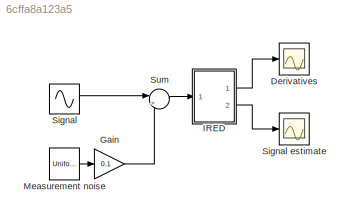
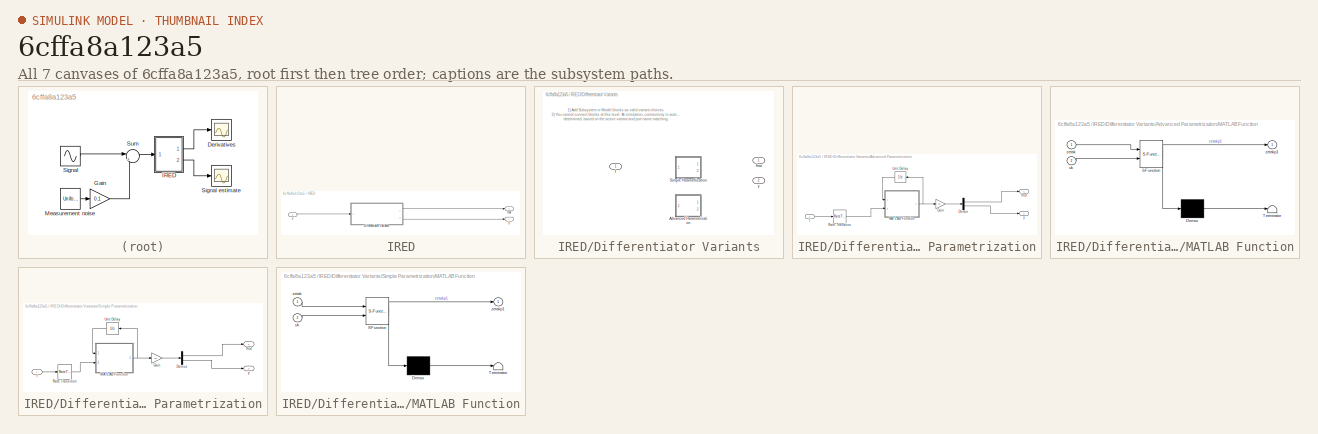
[diagram: thumbnail index - all 7 canvases of the model, root first then tree order]
MODEL slx_6cffa8a123a5
KIND model
CONFIG AbsTol = auto
CONFIG EnableMultiTasking = off
CONFIG FixedStep = auto
CONFIG MaxStep = auto
CONFIG MinStep = auto
CONFIG RelTol = 1e-3
CONFIG SampleTimeConstraint = Unconstrained
CONFIG Solver = VariableStepAuto
CONFIG SolverName = VariableStepAuto
CONFIG StartTime = 0.0
CONFIG StopTime = 30
BLOCK [Scope] Derivatives
  Floating = off
  NumInputPorts = 1
  Ports = [1]
  ScopeSpecificationString = Simulink.scopes.TimeScopeBlockCfg('CurrentConfiguration', extmgr.ConfigurationSet(extmgr.Configuration('Core','General UI',true),extmgr.Configuration('Core','Source UI',true),extmgr.Configuration('Sources','WiredSimulink',true,'DataLoggingVariableName','ScopeData1'),extmgr.Configuration('Visuals','Time Domain',true,'SerializedDisplays',{struct('MinYLimReal','-5.01685','MaxYLimReal','5.15298','YLab...<+1440ch>
BLOCK [Gain] Gain
  Gain = 0.1
  OutDataTypeStr = Inherit: Inherit via internal rule
  ParamDataTypeStr = Inherit: Inherit via internal rule
  SaturateOnIntegerOverflow = off
BLOCK [SubSystem] IRED
  InitFcn = if str2double(get_param(gcb,'T')) == 0 || str2double(get_param(gcb,'L')) == 0\n     \n    error('L and T must be positive');\n     \nend
  Ports = [1, 2]
  RequestExecContextInheritance = off
BLOCK [SubSystem] IRED/Differentiator Variants
  LabelModeActiveChoice = Simple
  Ports = [1, 2]
  RequestExecContextInheritance = off
  Variant = on
  VariantControlMode = Label
BLOCK [SubSystem] IRED/Differentiator Variants/Advanced Parametrization
  Ports = [1, 2]
  RequestExecContextInheritance = off
  VariantControl = Advanced
BLOCK [Demux] IRED/Differentiator Variants/Advanced Parametrization/Demux
  DisplayOption = bar
  Outputs = [1, n-1]
  Ports = [1, 2]
BLOCK [Gain] IRED/Differentiator Variants/Advanced Parametrization/Gain
  Gain = TC
  Multiplication = Matrix(K*u)
  OutDataTypeStr = Inherit: Inherit via internal rule
  ParamDataTypeStr = Inherit: Inherit via internal rule
  SaturateOnIntegerOverflow = off
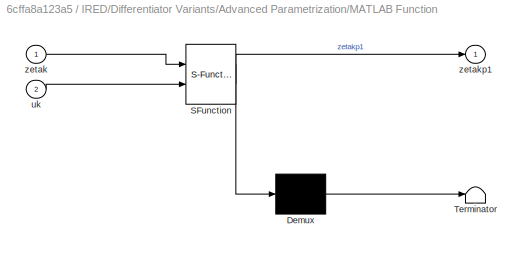
BLOCK [SubSystem] IRED/Differentiator Variants/Advanced Parametrization/MATLAB Function
  ErrorFcn = Stateflow.Translate.translate
  PermitHierarchicalResolution = ExplicitOnly
  Ports = [2, 1]
  RequestExecContextInheritance = off
  SFBlockType = MATLAB Function
  TreatAsAtomicUnit = on
BLOCK [Demux] IRED/Differentiator Variants/Advanced Parametrization/MATLAB Function/ Demux 
  Outputs = 1
  Ports = [1, 1]
BLOCK [S-Function] IRED/Differentiator Variants/Advanced Parametrization/MATLAB Function/ SFunction 
  EnableBusSupport = on
  FunctionName = sf_sfun
  Parameters = L,R,Tn,lambdai,n
  PortCounts = [2 2]
  Ports = [2, 2]
  SFcnIsStateOwnerBlock = off
  SFunctionDeploymentMode = off
  Tag = Stateflow S-Function 1
BLOCK [Terminator] IRED/Differentiator Variants/Advanced Parametrization/MATLAB Function/ Terminator 
BLOCK [Inport] IRED/Differentiator Variants/Advanced Parametrization/MATLAB Function/uk
  IconDisplay = Port number
  Port = 2
BLOCK [Inport] IRED/Differentiator Variants/Advanced Parametrization/MATLAB Function/zetak
  IconDisplay = Port number
BLOCK [Outport] IRED/Differentiator Variants/Advanced Parametrization/MATLAB Function/zetakp1
  IconDisplay = Port number
BLOCK [RateTransition] IRED/Differentiator Variants/Advanced Parametrization/Rate Transition
  OutPortSampleTime = T
BLOCK [UnitDelay] IRED/Differentiator Variants/Advanced Parametrization/Unit Delay
  HasFrameUpgradeWarning = on
  InitialCondition = zeros(n,1)
  SampleTime = -1
BLOCK [Inport] IRED/Differentiator Variants/Advanced Parametrization/f
  IconDisplay = Port number
BLOCK [Outport] IRED/Differentiator Variants/Advanced Parametrization/fhat
  IconDisplay = Port number
BLOCK [Outport] IRED/Differentiator Variants/Advanced Parametrization/y
  IconDisplay = Port number
  Port = 2
BLOCK [SubSystem] IRED/Differentiator Variants/Simple Parametrization
  Ports = [1, 2]
  RequestExecContextInheritance = off
  VariantControl = Simple
BLOCK [Demux] IRED/Differentiator Variants/Simple Parametrization/Demux
  DisplayOption = bar
  Outputs = [1, n-q-1]
  Ports = [1, 2]
BLOCK [Gain] IRED/Differentiator Variants/Simple Parametrization/Gain
  Gain = TC
  Multiplication = Matrix(K*u)
  OutDataTypeStr = Inherit: Inherit via internal rule
  ParamDataTypeStr = Inherit: Inherit via internal rule
  SaturateOnIntegerOverflow = off
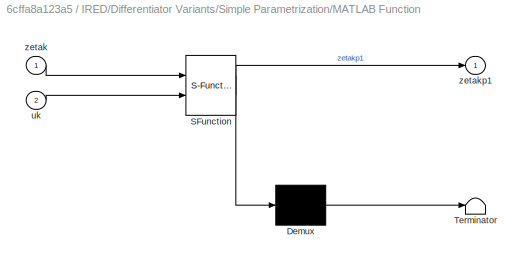
BLOCK [SubSystem] IRED/Differentiator Variants/Simple Parametrization/MATLAB Function
  ErrorFcn = Stateflow.Translate.translate
  PermitHierarchicalResolution = ExplicitOnly
  Ports = [2, 1]
  RequestExecContextInheritance = off
  SFBlockType = MATLAB Function
  TreatAsAtomicUnit = on
BLOCK [Demux] IRED/Differentiator Variants/Simple Parametrization/MATLAB Function/ Demux 
  Outputs = 1
  Ports = [1, 1]
BLOCK [S-Function] IRED/Differentiator Variants/Simple Parametrization/MATLAB Function/ SFunction 
  EnableBusSupport = on
  FunctionName = sf_sfun
  Parameters = L,Tn,Tq,kappa,n,q
  PortCounts = [2 2]
  Ports = [2, 2]
  SFcnIsStateOwnerBlock = off
  SFunctionDeploymentMode = off
  Tag = Stateflow S-Function 2
BLOCK [Terminator] IRED/Differentiator Variants/Simple Parametrization/MATLAB Function/ Terminator 
BLOCK [Inport] IRED/Differentiator Variants/Simple Parametrization/MATLAB Function/uk
  IconDisplay = Port number
  Port = 2
BLOCK [Inport] IRED/Differentiator Variants/Simple Parametrization/MATLAB Function/zetak
  IconDisplay = Port number
BLOCK [Outport] IRED/Differentiator Variants/Simple Parametrization/MATLAB Function/zetakp1
  IconDisplay = Port number
BLOCK [RateTransition] IRED/Differentiator Variants/Simple Parametrization/Rate Transition
  OutPortSampleTime = T
BLOCK [UnitDelay] IRED/Differentiator Variants/Simple Parametrization/Unit Delay
  HasFrameUpgradeWarning = on
  InitialCondition = zeros(n,1)
  SampleTime = -1
BLOCK [Inport] IRED/Differentiator Variants/Simple Parametrization/f
  IconDisplay = Port number
BLOCK [Outport] IRED/Differentiator Variants/Simple Parametrization/fhat
  IconDisplay = Port number
BLOCK [Outport] IRED/Differentiator Variants/Simple Parametrization/y
  IconDisplay = Port number
  Port = 2
BLOCK [Inport] IRED/Differentiator Variants/f
  IconDisplay = Port number
BLOCK [Outport] IRED/Differentiator Variants/fhat
  IconDisplay = Port number
BLOCK [Outport] IRED/Differentiator Variants/y
  IconDisplay = Port number
  Port = 2
BLOCK [Outport] IRED/fhat
  IconDisplay = Port number
  Port = 2
BLOCK [Inport] IRED/u
  IconDisplay = Port number
BLOCK [Outport] IRED/y
  IconDisplay = Port number
BLOCK [UniformRandomNumber] Measurement noise
  SampleTime = 0.01
BLOCK [Sin] Signal
  Frequency = 2
  Phase = pi/2
  Ports = [0, 1]
  SampleTime = 0
BLOCK [Scope] Signal estimate
  Floating = off
  NumInputPorts = 1
  Ports = [1]
  ScopeSpecificationString = Simulink.scopes.TimeScopeBlockCfg('CurrentConfiguration', extmgr.ConfigurationSet(extmgr.Configuration('Core','General UI',true),extmgr.Configuration('Core','Source UI',true),extmgr.Configuration('Sources','WiredSimulink',true,'DataLoggingVariableName','ScopeData2'),extmgr.Configuration('Visuals','Time Domain',true,'SerializedDisplays',{struct('MinYLimReal','-1.25685','MaxYLimReal','1.25076','YLab...<+1442ch>
BLOCK [Sum] Sum
  IconShape = round
  InputSameDT = off
  Inputs = |++
  OutDataTypeStr = Inherit: Inherit via internal rule
  Ports = [2, 1]
  SaturateOnIntegerOverflow = off
ANNOTATION IRED/Differentiator Variants: 1) Add Subsystem or Model blocks as valid variant choices. 2) You cannot connect blocks at this level. At simulation, connectivity is automatically determined, based on the active variant and port name matching.
LINE Gain:1 -> Sum:2
LINE IRED/Differentiator Variants/Advanced Parametrization/Demux:1 -> IRED/Differentiator Variants/Advanced Parametrization/fhat:1
LINE IRED/Differentiator Variants/Advanced Parametrization/Demux:2 -> IRED/Differentiator Variants/Advanced Parametrization/y:1
LINE IRED/Differentiator Variants/Advanced Parametrization/Gain:1 -> IRED/Differentiator Variants/Advanced Parametrization/Demux:1
NET IRED/Differentiator Variants/Advanced Parametrization/MATLAB Function:1 -> IRED/Differentiator Variants/Advanced Parametrization/Gain:1, IRED/Differentiator Variants/Advanced Parametrization/Unit Delay:1
LINE IRED/Differentiator Variants/Advanced Parametrization/Rate Transition:1 -> IRED/Differentiator Variants/Advanced Parametrization/MATLAB Function:2
LINE IRED/Differentiator Variants/Advanced Parametrization/Unit Delay:1 -> IRED/Differentiator Variants/Advanced Parametrization/MATLAB Function:1
LINE IRED/Differentiator Variants/Advanced Parametrization/f:1 -> IRED/Differentiator Variants/Advanced Parametrization/Rate Transition:1
LINE IRED/Differentiator Variants/Simple Parametrization/Demux:1 -> IRED/Differentiator Variants/Simple Parametrization/fhat:1
LINE IRED/Differentiator Variants/Simple Parametrization/Demux:2 -> IRED/Differentiator Variants/Simple Parametrization/y:1
LINE IRED/Differentiator Variants/Simple Parametrization/Gain:1 -> IRED/Differentiator Variants/Simple Parametrization/Demux:1
NET IRED/Differentiator Variants/Simple Parametrization/MATLAB Function:1 -> IRED/Differentiator Variants/Simple Parametrization/Gain:1, IRED/Differentiator Variants/Simple Parametrization/Unit Delay:1
LINE IRED/Differentiator Variants/Simple Parametrization/Rate Transition:1 -> IRED/Differentiator Variants/Simple Parametrization/MATLAB Function:2
LINE IRED/Differentiator Variants/Simple Parametrization/Unit Delay:1 -> IRED/Differentiator Variants/Simple Parametrization/MATLAB Function:1
LINE IRED/Differentiator Variants/Simple Parametrization/f:1 -> IRED/Differentiator Variants/Simple Parametrization/Rate Transition:1
LINE IRED/Differentiator Variants:1 -> IRED/fhat:1
LINE IRED/Differentiator Variants:2 -> IRED/y:1
LINE IRED/u:1 -> IRED/Differentiator Variants:1
LINE IRED:1 -> Derivatives:1
LINE IRED:2 -> Signal estimate:1
LINE Measurement noise:1 -> Gain:1
LINE Signal:1 -> Sum:1
LINE Sum:1 -> IRED:1
note: NET lines group one-source signal fan-out (src -> all destinations, sorted); 1:1 wires keep LINE
CHART IRED/Differentiator Variants/Advanced Parametrization/MATLAB Function states=1 transitions=1
  STATE_LABEL 'eML_blk_kernel()'
  STATE_LABEL 'SCRIPT:\nfunction zetakp1 = diff_advanced(zetak, uk, L, Tn, n, lambdai, R)\n\n\nzetakp1 = zeros(n,1);\nbk = uk - sum(zetak);\nLTn = L*Tn;\nif abs(bk) > lambdai(end)*LTn\n    beta = newton_root(bk, LTn, n, lambdai, R);\n    zetakp1(n) = zetak(n) + lambdai(end)*LTn*sign(bk);\n    for ii = (n-1):-1:1\n        zetakp1(ii) = zetak(ii) + lambdai(ii)*LTn*beta^(n-ii)*sign(bk)+zetakp1(ii+1);\n    end\nelse\n    zetakp1(...<+443ch>'
CHART IRED/Differentiator Variants/Simple Parametrization/MATLAB Function states=1 transitions=1
  STATE_LABEL 'eML_blk_kernel()'
  STATE_LABEL 'SCRIPT:\nfunction zetakp1 = diff_simple(zetak, uk, L, kappa, Tn, n, q, Tq)\n\n\n%C = precompute_cij(n)\n%Tn = T^n;\nD = L*Tn*kappa;\nzetakp1 = zeros(n,1);\nbk = Tq*uk - sum(zetak);\nif abs(bk) > D\n    mu = (abs(bk)/D)^(1/n)-1;\n    zetakp1(n) = zetak(n) + D*sign(bk);\n    for ii = n-1:-1:1\n        zetakp1(ii) = zetak(ii) + nchoosek(n,ii)*D*mu^(n-ii)*sign(bk)+zetakp1(ii+1);\n        if q == ii\n           zetak...<+294ch>'
